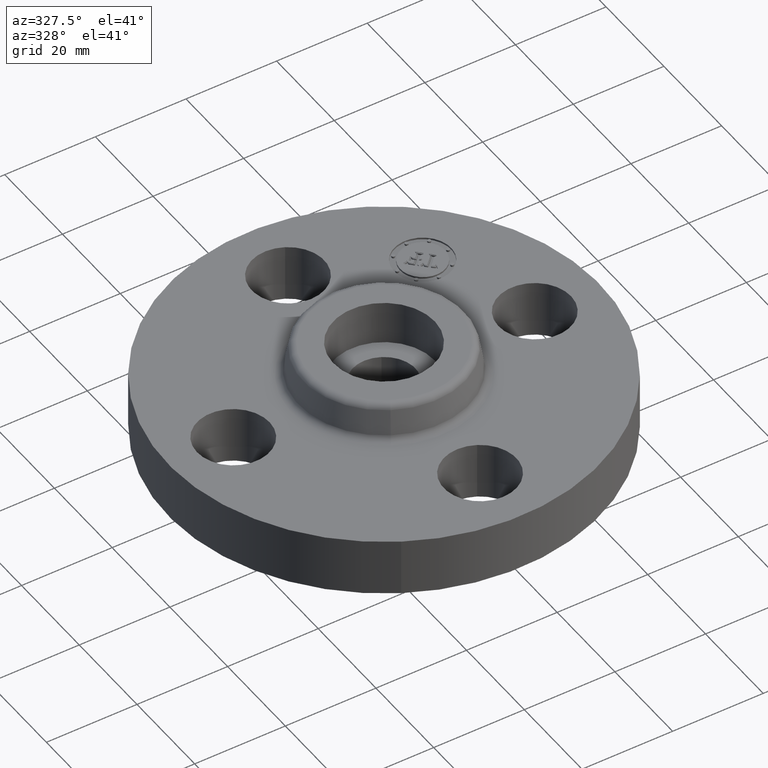
[diagram: clean part render]
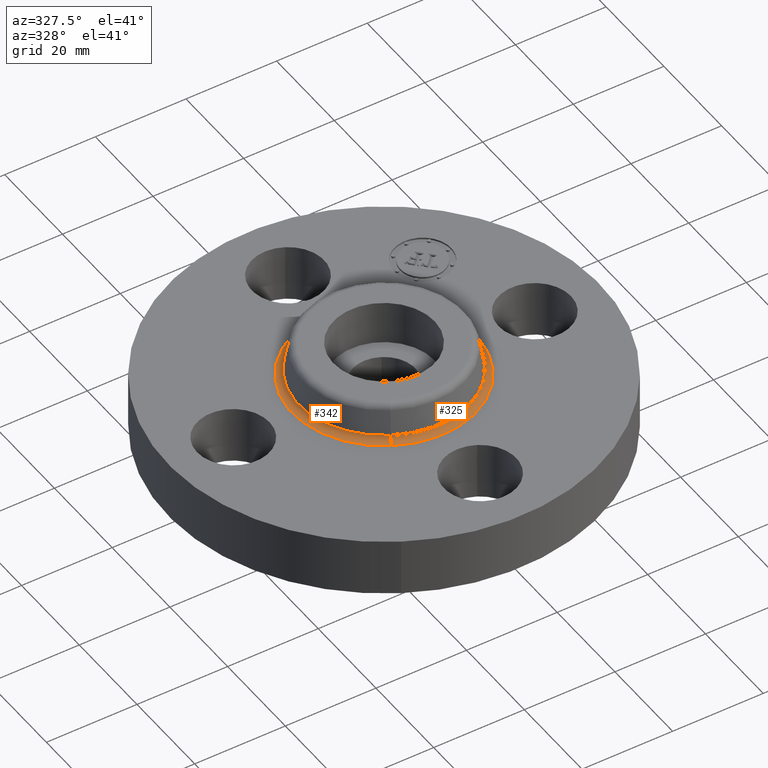
[diagram: same view with one multi-face feature highlighted, each face labeled with its STEP entity id]
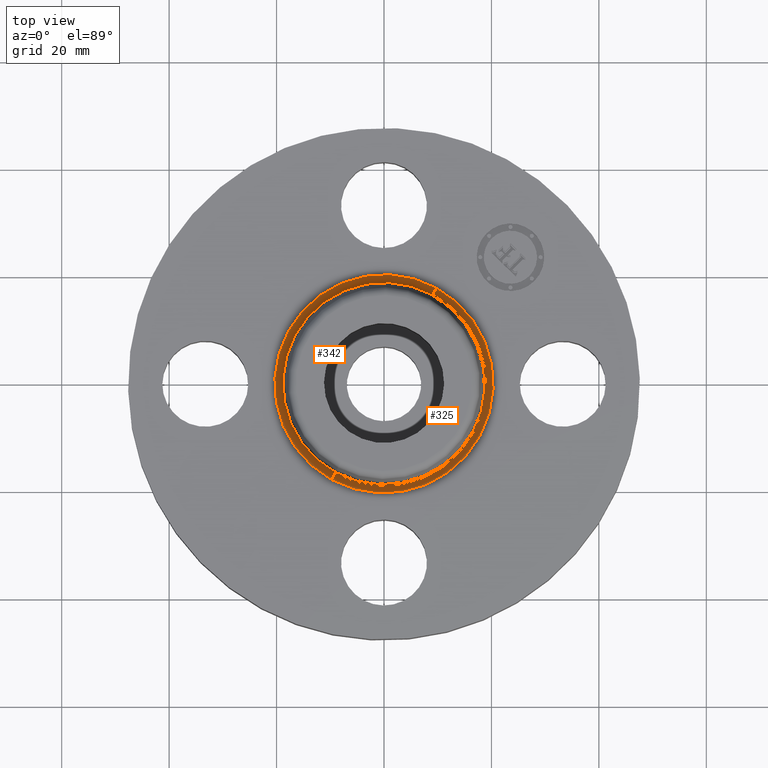
[diagram: same view with one multi-face feature highlighted, each face labeled with its STEP entity id]
A machine part, auxiliary view. The highlighted faces form ONE feature: a constant-radius fillet chain: 2 tangent blend faces with common blend radius 1.524 mm. The faces share edges in the B-rep.
A second angle (top view) of the same feature is appended — it is thin or edge-on in the first view.
Their STEP definitions:
[1] entity #325 (Torus):
#289=AXIS2_PLACEMENT_3D('Torus Axis2P3D',#286,#287,#288) ;
#293=AXIS2_PLACEMENT_3D('Circle Axis2P3D',#291,#292,$) ;
#302=AXIS2_PLACEMENT_3D('Circle Axis2P3D',#300,#301,$) ;
#309=AXIS2_PLACEMENT_3D('Circle Axis2P3D',#307,#308,$) ;
#316=AXIS2_PLACEMENT_3D('Circle Axis2P3D',#314,#315,$) ;
#286=CARTESIAN_POINT('Axis2P3D Location',(0.,0.,0.560000000002)) ;
#291=CARTESIAN_POINT('Axis2P3D Location',(0.,0.,0.500000000002)) ;
#295=CARTESIAN_POINT('Vertex',(0.383706301512,0.702369673661,0.500000000002)) ;
#297=CARTESIAN_POINT('Vertex',(-0.383706301512,-0.702369673661,0.500000000002)) ;
#300=CARTESIAN_POINT('Axis2P3D Location',(0.383706301512,0.702369673661,0.560000000002)) ;
#304=CARTESIAN_POINT('Vertex',(0.355377782267,0.650514667009,0.549581109342)) ;
#307=CARTESIAN_POINT('Axis2P3D Location',(0.,0.,0.549581109342)) ;
#311=CARTESIAN_POINT('Vertex',(-0.355377782267,-0.650514667009,0.549581109342)) ;
#314=CARTESIAN_POINT('Axis2P3D Location',(-0.383706301512,-0.702369673661,0.560000000002)) ;
#287=DIRECTION('Axis2P3D Direction',(0.,0.,-0.0393700787402)) ;
#288=DIRECTION('Axis2P3D XDirection',(-0.0188750212049,-0.0345504945626,0.)) ;
#292=DIRECTION('Axis2P3D Direction',(0.,0.,-0.0393700787402)) ;
#301=DIRECTION('Axis2P3D Direction',(-0.0345504945626,0.0188750212049,0.)) ;
#308=DIRECTION('Axis2P3D Direction',(0.,0.,-0.0393700787402)) ;
#315=DIRECTION('Axis2P3D Direction',(0.0345504945626,-0.0188750212049,0.)) ;
#320=ORIENTED_EDGE('',*,*,#299,.F.) ;
#321=ORIENTED_EDGE('',*,*,#306,.T.) ;
#322=ORIENTED_EDGE('',*,*,#313,.T.) ;
#323=ORIENTED_EDGE('',*,*,#318,.F.) ;
#325=ADVANCED_FACE('PartBody',(#324),#290,.F.) ;
#294=CIRCLE('generated circle',#293,0.800345977874) ;
#303=CIRCLE('generated circle',#302,0.0600000000002) ;
#310=CIRCLE('generated circle',#309,0.741257512693) ;
#317=CIRCLE('generated circle',#316,0.0600000000002) ;
#290=TOROIDAL_SURFACE('homeo Torus',#289,0.800345977874,0.0600000000002) ;
#299=EDGE_CURVE('',#296,#298,#294,.T.) ;
#306=EDGE_CURVE('',#296,#305,#303,.T.) ;
#313=EDGE_CURVE('',#305,#312,#310,.T.) ;
#318=EDGE_CURVE('',#298,#312,#317,.T.) ;
#319=EDGE_LOOP('',(#320,#321,#322,#323)) ;
#324=FACE_OUTER_BOUND('',#319,.T.) ;
#296=VERTEX_POINT('',#295) ;
#298=VERTEX_POINT('',#297) ;
#305=VERTEX_POINT('',#304) ;
#312=VERTEX_POINT('',#311) ;
[2] entity #342 (Torus):
#289=AXIS2_PLACEMENT_3D('Torus Axis2P3D',#286,#287,#288) ;
#302=AXIS2_PLACEMENT_3D('Circle Axis2P3D',#300,#301,$) ;
#316=AXIS2_PLACEMENT_3D('Circle Axis2P3D',#314,#315,$) ;
#328=AXIS2_PLACEMENT_3D('Circle Axis2P3D',#326,#327,$) ;
#333=AXIS2_PLACEMENT_3D('Circle Axis2P3D',#331,#332,$) ;
#286=CARTESIAN_POINT('Axis2P3D Location',(0.,0.,0.560000000002)) ;
#295=CARTESIAN_POINT('Vertex',(0.383706301512,0.702369673661,0.500000000002)) ;
#297=CARTESIAN_POINT('Vertex',(-0.383706301512,-0.702369673661,0.500000000002)) ;
#300=CARTESIAN_POINT('Axis2P3D Location',(0.383706301512,0.702369673661,0.560000000002)) ;
#304=CARTESIAN_POINT('Vertex',(0.355377782267,0.650514667009,0.549581109342)) ;
#311=CARTESIAN_POINT('Vertex',(-0.355377782267,-0.650514667009,0.549581109342)) ;
#314=CARTESIAN_POINT('Axis2P3D Location',(-0.383706301512,-0.702369673661,0.560000000002)) ;
#326=CARTESIAN_POINT('Axis2P3D Location',(0.,0.,0.500000000002)) ;
#331=CARTESIAN_POINT('Axis2P3D Location',(0.,0.,0.549581109342)) ;
#287=DIRECTION('Axis2P3D Direction',(0.,0.,-0.0393700787402)) ;
#288=DIRECTION('Axis2P3D XDirection',(-0.0188750212049,-0.0345504945626,0.)) ;
#301=DIRECTION('Axis2P3D Direction',(-0.0345504945626,0.0188750212049,0.)) ;
#315=DIRECTION('Axis2P3D Direction',(0.0345504945626,-0.0188750212049,0.)) ;
#327=DIRECTION('Axis2P3D Direction',(0.,0.,-0.0393700787402)) ;
#332=DIRECTION('Axis2P3D Direction',(0.,0.,-0.0393700787402)) ;
#337=ORIENTED_EDGE('',*,*,#330,.F.) ;
#338=ORIENTED_EDGE('',*,*,#318,.T.) ;
#339=ORIENTED_EDGE('',*,*,#335,.T.) ;
#340=ORIENTED_EDGE('',*,*,#306,.F.) ;
#342=ADVANCED_FACE('PartBody',(#341),#290,.F.) ;
#303=CIRCLE('generated circle',#302,0.0600000000002) ;
#317=CIRCLE('generated circle',#316,0.0600000000002) ;
#329=CIRCLE('generated circle',#328,0.800345977874) ;
#334=CIRCLE('generated circle',#333,0.741257512693) ;
#290=TOROIDAL_SURFACE('homeo Torus',#289,0.800345977874,0.0600000000002) ;
#306=EDGE_CURVE('',#296,#305,#303,.T.) ;
#318=EDGE_CURVE('',#298,#312,#317,.T.) ;
#330=EDGE_CURVE('',#298,#296,#329,.T.) ;
#335=EDGE_CURVE('',#312,#305,#334,.T.) ;
#336=EDGE_LOOP('',(#337,#338,#339,#340)) ;
#341=FACE_OUTER_BOUND('',#336,.T.) ;
#296=VERTEX_POINT('',#295) ;
#298=VERTEX_POINT('',#297) ;
#305=VERTEX_POINT('',#304) ;
#312=VERTEX_POINT('',#311) ;